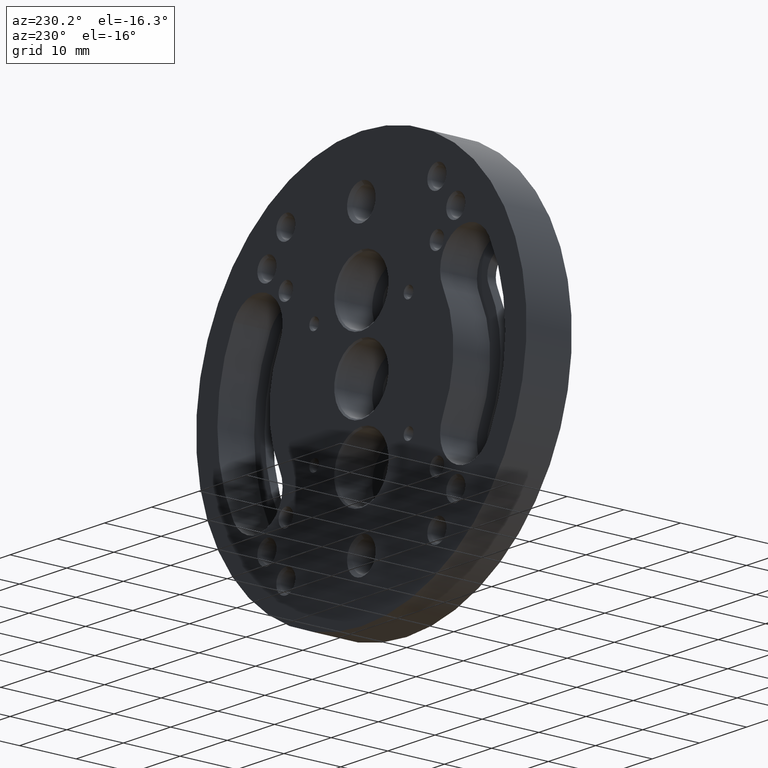
[diagram: clean part render]
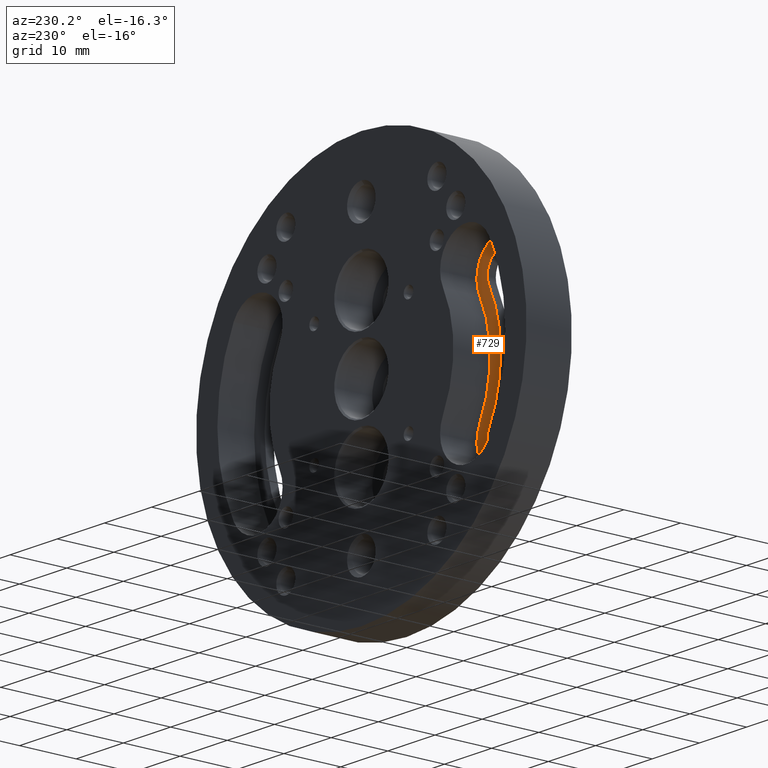
[diagram: same view with one face highlighted and labeled with its STEP entity id]
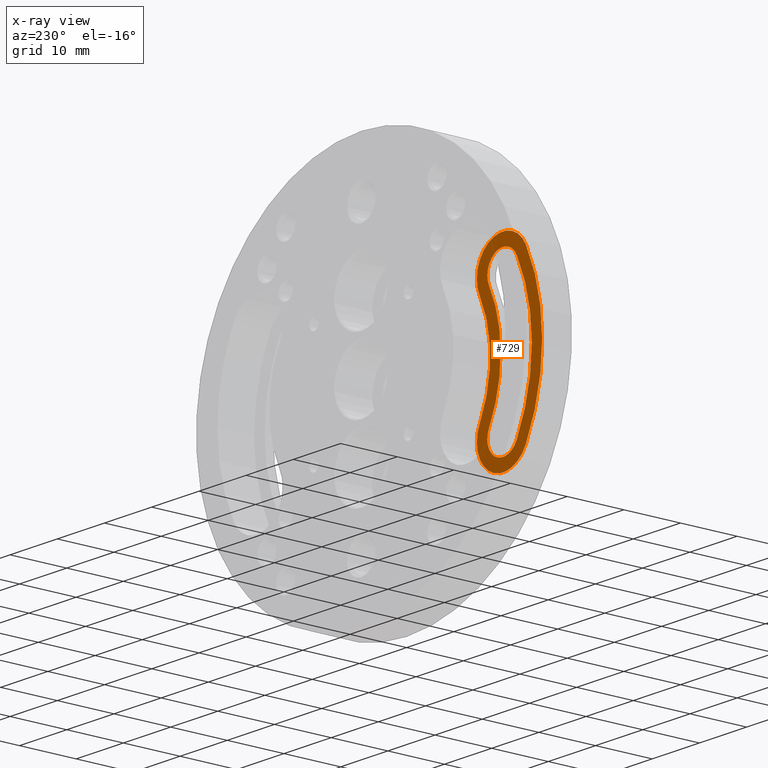
[diagram: x-ray of the same camera — body ghosted, the highlighted face saturated]
A machine part, auxiliary view. The second image highlights one B-rep face of the part: STEP entity #729.
The next image is the same camera in x-ray: the body ghosted, the highlighted face saturated — about 0% of this face is hidden behind the body in this view.
In plain terms, the highlighted planar face has unit normal (0, 1, 0).
Its self-contained STEP definition (entity closure, byte-faithful):
#25 = CIRCLE ( 'NONE', #629, 3.300000000000002487 ) ;
#65 = CARTESIAN_POINT ( 'NONE',  ( -22.17527082945552408, 1.500000000000000444, 11.54371533087588020 ) ) ;
#73 = DIRECTION ( 'NONE',  ( 0.000000000000000000, 0.000000000000000000, 1.000000000000000000 ) ) ;
#77 = VERTEX_POINT ( 'NONE', #1624 ) ;
#86 = EDGE_CURVE ( 'NONE', #77, #1943, #209, .T. ) ;
#160 = VERTEX_POINT ( 'NONE', #663 ) ;
#197 = EDGE_CURVE ( 'NONE', #1943, #1330, #1837, .T. ) ;
#209 = CIRCLE ( 'NONE', #1036, 3.300000000000004263 ) ;
#219 = CARTESIAN_POINT ( 'NONE',  ( -25.10240657894365768, 1.500000000000000444, 13.06748575455149819 ) ) ;
#223 = DIRECTION ( 'NONE',  ( -0.000000000000000000, -1.000000000000000000, -0.000000000000000000 ) ) ;
#301 = VERTEX_POINT ( 'NONE', #923 ) ;
#340 = AXIS2_PLACEMENT_3D ( 'NONE', #1442, #1150, #1311 ) ;
#351 = CARTESIAN_POINT ( 'NONE',  ( -19.24813507996739048, 1.500000000000000444, 10.01994490720026221 ) ) ;
#369 = CARTESIAN_POINT ( 'NONE',  ( -22.17527082945552763, 1.500000000000000444, -11.54371533087587842 ) ) ;
#406 = DIRECTION ( 'NONE',  ( 0.000000000000000000, 0.000000000000000000, 1.000000000000000000 ) ) ;
#409 = AXIS2_PLACEMENT_3D ( 'NONE', #735, #463, #1664 ) ;
#414 = CIRCLE ( 'NONE', #1853, 30.49999999999999289 ) ;
#420 = ORIENTED_EDGE ( 'NONE', *, *, #1011, .T. ) ;
#457 = AXIS2_PLACEMENT_3D ( 'NONE', #65, #1429, #1126 ) ;
#463 = DIRECTION ( 'NONE',  ( 0.000000000000000000, 1.000000000000000000, 0.000000000000000000 ) ) ;
#468 = ORIENTED_EDGE ( 'NONE', *, *, #197, .T. ) ;
#495 = ORIENTED_EDGE ( 'NONE', *, *, #86, .T. ) ;
#504 = VERTEX_POINT ( 'NONE', #219 ) ;
#554 = EDGE_CURVE ( 'NONE', #301, #1521, #908, .T. ) ;
#580 = DIRECTION ( 'NONE',  ( -0.000000000000000000, 1.000000000000000000, 0.000000000000000000 ) ) ;
#584 = PLANE ( 'NONE',  #409 ) ;
#629 = AXIS2_PLACEMENT_3D ( 'NONE', #1899, #1128, #1782 ) ;
#660 = EDGE_LOOP ( 'NONE', ( #1888, #1495, #943, #1452 ) ) ;
#663 = CARTESIAN_POINT ( 'NONE',  ( -17.29671124697530615, 1.500000000000000444, 9.004097958083184139 ) ) ;
#673 = DIRECTION ( 'NONE',  ( -0.000000000000000000, 1.000000000000000000, 0.000000000000000000 ) ) ;
#729 = ADVANCED_FACE ( 'NONE', ( #1836, #1793 ), #584, .T. ) ;
#735 = CARTESIAN_POINT ( 'NONE',  ( -11.08763541472776204, 1.500000000000000444, 5.771857665437940099 ) ) ;
#743 = DIRECTION ( 'NONE',  ( 0.000000000000000000, 0.000000000000000000, 1.000000000000000000 ) ) ;
#856 = CARTESIAN_POINT ( 'NONE',  ( -27.05383041193573490, 1.500000000000000444, 14.08333270366857093 ) ) ;
#908 = CIRCLE ( 'NONE', #1466, 5.500000000000000000 ) ;
#923 = CARTESIAN_POINT ( 'NONE',  ( -27.05383041193573135, 1.500000000000000444, -14.08333270366857448 ) ) ;
#943 = ORIENTED_EDGE ( 'NONE', *, *, #554, .F. ) ;
#954 = EDGE_LOOP ( 'NONE', ( #468, #420, #1754, #495 ) ) ;
#993 = CARTESIAN_POINT ( 'NONE',  ( -19.24813507996739403, 1.500000000000000444, -10.01994490720026398 ) ) ;
#1011 = EDGE_CURVE ( 'NONE', #1330, #504, #25, .T. ) ;
#1036 = AXIS2_PLACEMENT_3D ( 'NONE', #369, #223, #1941 ) ;
#1102 = EDGE_CURVE ( 'NONE', #504, #77, #1195, .T. ) ;
#1126 = DIRECTION ( 'NONE',  ( 0.000000000000000000, 0.000000000000000000, 1.000000000000000000 ) ) ;
#1128 = DIRECTION ( 'NONE',  ( -0.000000000000000000, -1.000000000000000000, -0.000000000000000000 ) ) ;
#1141 = EDGE_CURVE ( 'NONE', #1511, #301, #414, .T. ) ;
#1150 = DIRECTION ( 'NONE',  ( -0.000000000000000000, -1.000000000000000000, -0.000000000000000000 ) ) ;
#1195 = CIRCLE ( 'NONE', #340, 28.30000000000000071 ) ;
#1256 = EDGE_CURVE ( 'NONE', #1521, #160, #1886, .T. ) ;
#1262 = CARTESIAN_POINT ( 'NONE',  ( 0.000000000000000000, 1.500000000000000444, 0.000000000000000000 ) ) ;
#1278 = DIRECTION ( 'NONE',  ( -0.000000000000000000, -1.000000000000000000, -0.000000000000000000 ) ) ;
#1311 = DIRECTION ( 'NONE',  ( 0.000000000000000000, 0.000000000000000000, 1.000000000000000000 ) ) ;
#1330 = VERTEX_POINT ( 'NONE', #351 ) ;
#1350 = CARTESIAN_POINT ( 'NONE',  ( 0.000000000000000000, 1.500000000000000444, 0.000000000000000000 ) ) ;
#1429 = DIRECTION ( 'NONE',  ( -0.000000000000000000, -1.000000000000000000, -0.000000000000000000 ) ) ;
#1442 = CARTESIAN_POINT ( 'NONE',  ( 0.000000000000000000, 1.500000000000000444, 0.000000000000000000 ) ) ;
#1452 = ORIENTED_EDGE ( 'NONE', *, *, #1141, .F. ) ;
#1466 = AXIS2_PLACEMENT_3D ( 'NONE', #1776, #1278, #406 ) ;
#1494 = CARTESIAN_POINT ( 'NONE',  ( 0.000000000000000000, 1.500000000000000444, 0.000000000000000000 ) ) ;
#1495 = ORIENTED_EDGE ( 'NONE', *, *, #1256, .F. ) ;
#1511 = VERTEX_POINT ( 'NONE', #856 ) ;
#1521 = VERTEX_POINT ( 'NONE', #1730 ) ;
#1543 = AXIS2_PLACEMENT_3D ( 'NONE', #1262, #673, #73 ) ;
#1580 = EDGE_CURVE ( 'NONE', #160, #1511, #1606, .T. ) ;
#1606 = CIRCLE ( 'NONE', #457, 5.500000000000000000 ) ;
#1624 = CARTESIAN_POINT ( 'NONE',  ( -25.10240657894365413, 1.500000000000000444, -13.06748575455150174 ) ) ;
#1664 = DIRECTION ( 'NONE',  ( 0.000000000000000000, 0.000000000000000000, 1.000000000000000000 ) ) ;
#1730 = CARTESIAN_POINT ( 'NONE',  ( -17.29671124697530615, 1.500000000000000444, -9.004097958083184139 ) ) ;
#1754 = ORIENTED_EDGE ( 'NONE', *, *, #1102, .T. ) ;
#1755 = AXIS2_PLACEMENT_3D ( 'NONE', #1350, #580, #743 ) ;
#1776 = CARTESIAN_POINT ( 'NONE',  ( -22.17527082945552053, 1.500000000000000444, -11.54371533087588020 ) ) ;
#1782 = DIRECTION ( 'NONE',  ( 0.000000000000000000, 0.000000000000000000, 1.000000000000000000 ) ) ;
#1793 = FACE_OUTER_BOUND ( 'NONE', #660, .T. ) ;
#1836 = FACE_BOUND ( 'NONE', #954, .T. ) ;
#1837 = CIRCLE ( 'NONE', #1543, 21.69999999999999218 ) ;
#1853 = AXIS2_PLACEMENT_3D ( 'NONE', #1494, #1955, #1973 ) ;
#1886 = CIRCLE ( 'NONE', #1755, 19.49999999999999645 ) ;
#1888 = ORIENTED_EDGE ( 'NONE', *, *, #1580, .F. ) ;
#1899 = CARTESIAN_POINT ( 'NONE',  ( -22.17527082945552053, 1.500000000000000444, 11.54371533087588020 ) ) ;
#1941 = DIRECTION ( 'NONE',  ( 0.000000000000000000, 0.000000000000000000, 1.000000000000000000 ) ) ;
#1943 = VERTEX_POINT ( 'NONE', #993 ) ;
#1955 = DIRECTION ( 'NONE',  ( -0.000000000000000000, -1.000000000000000000, -0.000000000000000000 ) ) ;
#1973 = DIRECTION ( 'NONE',  ( 0.000000000000000000, 0.000000000000000000, 1.000000000000000000 ) ) ;